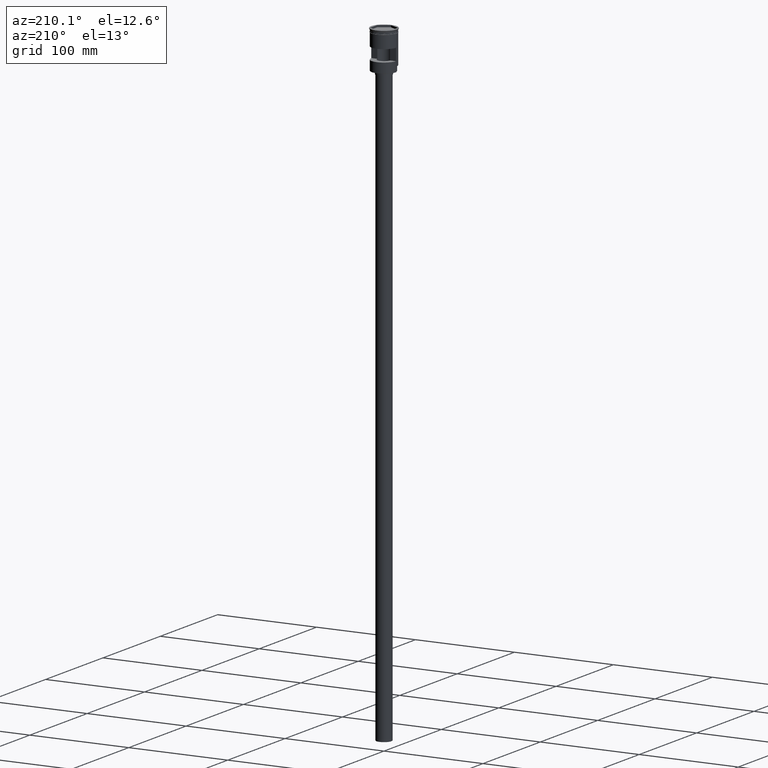
[diagram: clean part render]
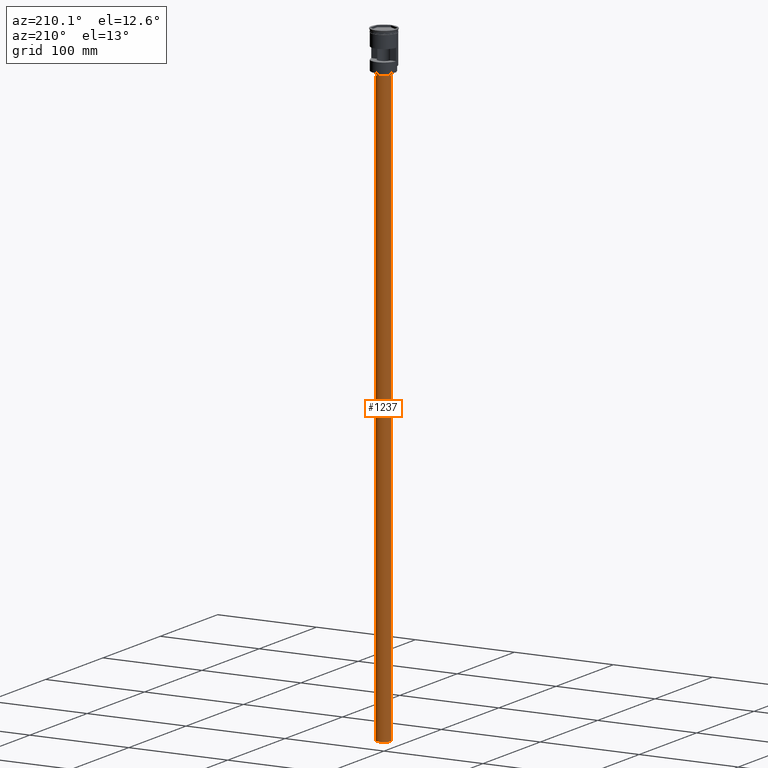
[diagram: same view with one face highlighted and labeled with its STEP entity id]
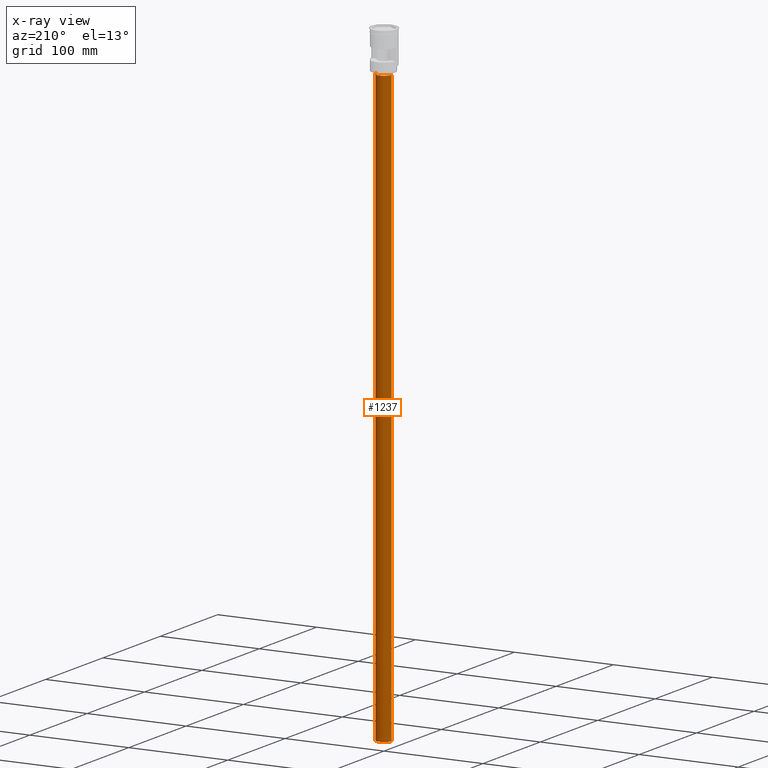
[diagram: x-ray of the same camera — body ghosted, the highlighted face saturated]
A machine part, auxiliary view. The second image highlights one B-rep face of the part: STEP entity #1237.
The next image is the same camera in x-ray: the body ghosted, the highlighted face saturated — about 0% of this face is hidden behind the body in this view.
In plain terms, the highlighted cylindrical surface (edge-blend (fillet) strip) has radius 7.5 mm, axis along (-0, -0, 1).
Its self-contained STEP definition (entity closure, byte-faithful):
#17 = CARTESIAN_POINT ( 'NONE',  ( 7.500000000000000000, 0.000000000000000000, -638.5000000000000000 ) ) ;
#39 = CARTESIAN_POINT ( 'NONE',  ( 7.500000000000000000, 0.000000000000000000, -638.5000000000000000 ) ) ;
#61 = ORIENTED_EDGE ( 'NONE', *, *, #1560, .F. ) ;
#74 = AXIS2_PLACEMENT_3D ( 'NONE', #277, #663, #289 ) ;
#126 = AXIS2_PLACEMENT_3D ( 'NONE', #776, #160, #887 ) ;
#129 = ORIENTED_EDGE ( 'NONE', *, *, #1328, .F. ) ;
#160 = DIRECTION ( 'NONE',  ( 0.000000000000000000, 0.000000000000000000, -1.000000000000000000 ) ) ;
#195 = DIRECTION ( 'NONE',  ( -0.000000000000000000, -0.000000000000000000, 1.000000000000000000 ) ) ;
#205 = VECTOR ( 'NONE', #195, 1000.000000000000000 ) ;
#277 = CARTESIAN_POINT ( 'NONE',  ( 0.000000000000000000, 0.000000000000000000, -638.5000000000000000 ) ) ;
#289 = DIRECTION ( 'NONE',  ( 1.000000000000000000, 0.000000000000000000, 0.000000000000000000 ) ) ;
#307 = VERTEX_POINT ( 'NONE', #1193 ) ;
#394 = CARTESIAN_POINT ( 'NONE',  ( -7.500000000000000000, 9.184850993605147944E-16, -638.5000000000000000 ) ) ;
#475 = DIRECTION ( 'NONE',  ( -1.000000000000000000, 0.000000000000000000, 0.000000000000000000 ) ) ;
#516 = ORIENTED_EDGE ( 'NONE', *, *, #1362, .T. ) ;
#518 = CARTESIAN_POINT ( 'NONE',  ( -7.500000000000000000, 9.184850993605147944E-16, -638.5000000000000000 ) ) ;
#663 = DIRECTION ( 'NONE',  ( -0.000000000000000000, -0.000000000000000000, 1.000000000000000000 ) ) ;
#736 = CARTESIAN_POINT ( 'NONE',  ( 0.000000000000000000, 0.000000000000000000, -41.50000000000000000 ) ) ;
#776 = CARTESIAN_POINT ( 'NONE',  ( 0.000000000000000000, 0.000000000000000000, -638.5000000000000000 ) ) ;
#796 = LINE ( 'NONE', #518, #205 ) ;
#834 = VERTEX_POINT ( 'NONE', #39 ) ;
#887 = DIRECTION ( 'NONE',  ( -1.000000000000000000, 0.000000000000000000, 0.000000000000000000 ) ) ;
#894 = CYLINDRICAL_SURFACE ( 'NONE', #74, 7.500000000000000000 ) ;
#980 = DIRECTION ( 'NONE',  ( 0.000000000000000000, 0.000000000000000000, -1.000000000000000000 ) ) ;
#992 = VERTEX_POINT ( 'NONE', #1465 ) ;
#1063 = EDGE_LOOP ( 'NONE', ( #129, #516, #1211, #61 ) ) ;
#1091 = EDGE_CURVE ( 'NONE', #307, #992, #1442, .T. ) ;
#1105 = LINE ( 'NONE', #17, #1341 ) ;
#1193 = CARTESIAN_POINT ( 'NONE',  ( -7.500000000000000000, 9.184850993605147944E-16, -41.50000000000000000 ) ) ;
#1211 = ORIENTED_EDGE ( 'NONE', *, *, #1091, .T. ) ;
#1230 = AXIS2_PLACEMENT_3D ( 'NONE', #736, #980, #475 ) ;
#1231 = VERTEX_POINT ( 'NONE', #394 ) ;
#1237 = ADVANCED_FACE ( 'NONE', ( #1280 ), #894, .T. ) ;
#1280 = FACE_OUTER_BOUND ( 'NONE', #1063, .T. ) ;
#1328 = EDGE_CURVE ( 'NONE', #1231, #834, #1497, .T. ) ;
#1341 = VECTOR ( 'NONE', #1358, 1000.000000000000000 ) ;
#1358 = DIRECTION ( 'NONE',  ( -0.000000000000000000, -0.000000000000000000, 1.000000000000000000 ) ) ;
#1362 = EDGE_CURVE ( 'NONE', #1231, #307, #796, .T. ) ;
#1442 = CIRCLE ( 'NONE', #1230, 7.500000000000000000 ) ;
#1465 = CARTESIAN_POINT ( 'NONE',  ( 7.500000000000000000, 0.000000000000000000, -41.50000000000000000 ) ) ;
#1497 = CIRCLE ( 'NONE', #126, 7.500000000000000000 ) ;
#1560 = EDGE_CURVE ( 'NONE', #834, #992, #1105, .T. ) ;